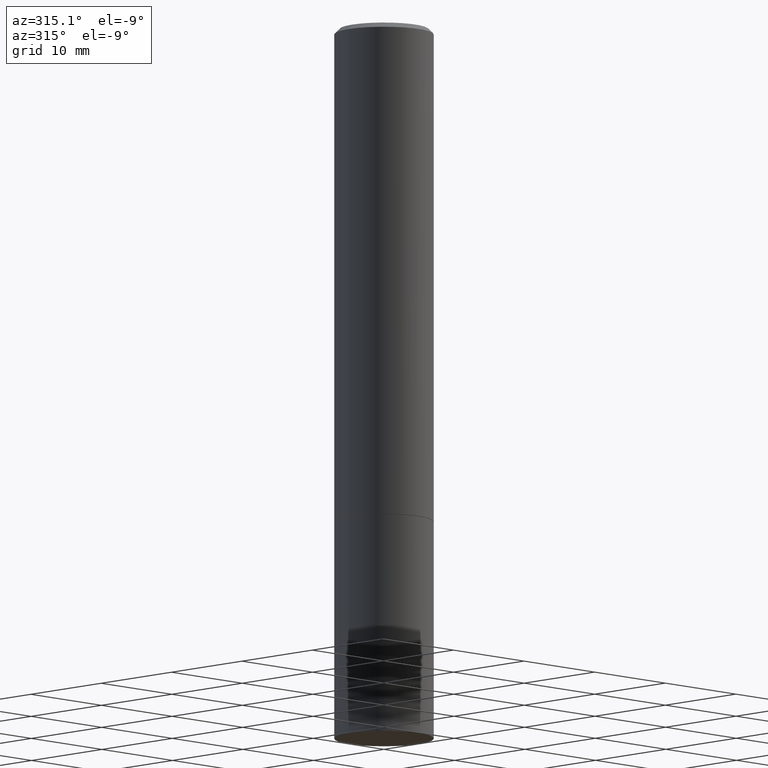
[diagram: clean part render]
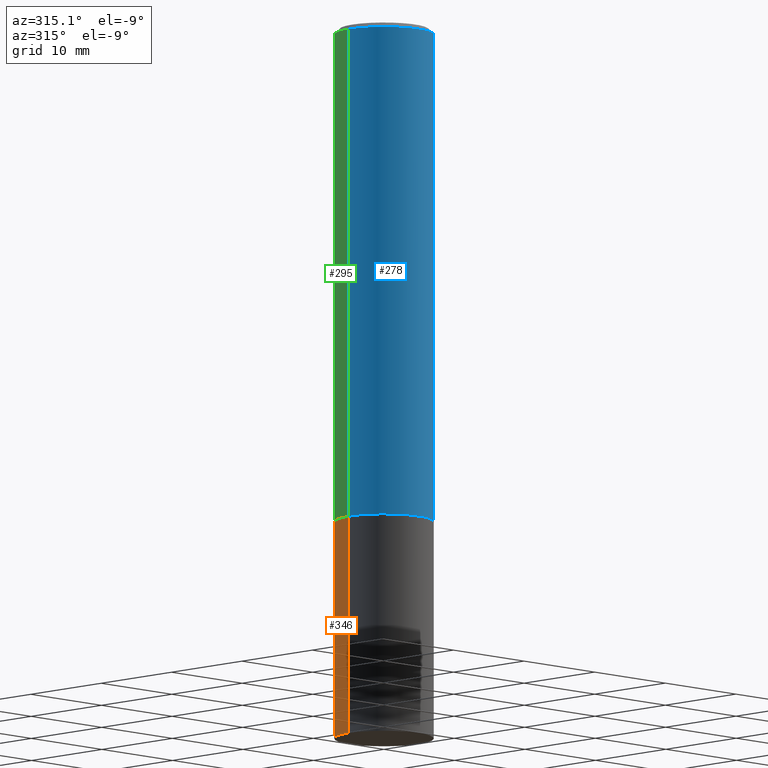
[diagram: same view with three faces highlighted in distinct colors, each labeled with its STEP entity id]
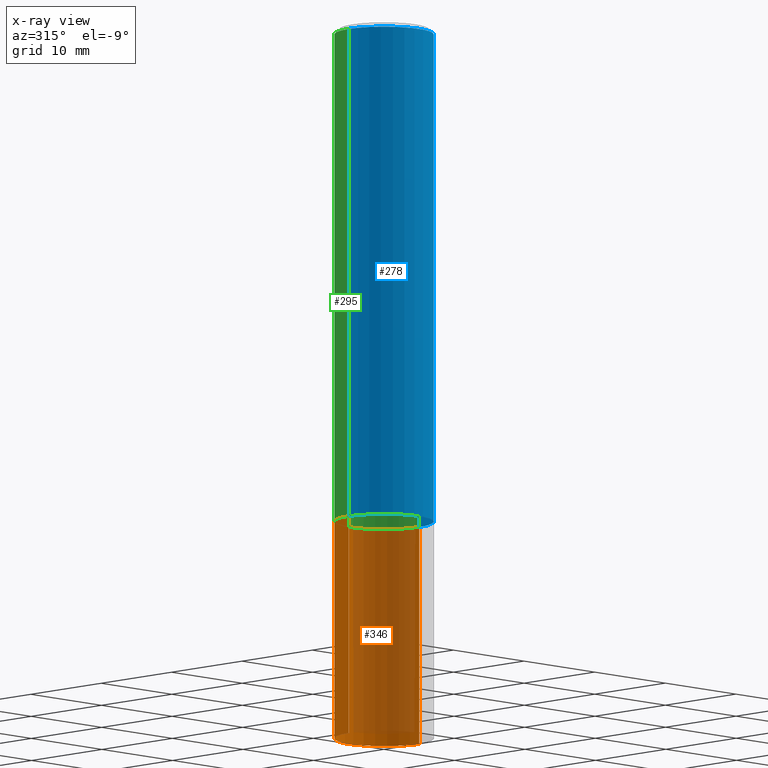
[diagram: x-ray of the same camera — body ghosted, the three highlighted faces saturated]
A machine part, auxiliary view with three faces highlighted in distinct colors.
The next image is the same camera in x-ray (body ghosted, the three faces saturated) — at least one of them is partly hidden behind the body in this view.
Their STEP definitions:

[orange] entity #346 — the highlighted cylindrical surface (partial cylindrical patch) has radius 5 mm, axis along (-0, 0, 1).
#3 = EDGE_CURVE ( 'NONE', #230, #363, #111, .T. ) ;
#4 = AXIS2_PLACEMENT_3D ( 'NONE', #157, #158, #110 ) ;
#5 = AXIS2_PLACEMENT_3D ( 'NONE', #234, #347, #202 ) ;
#31 = CIRCLE ( 'NONE', #72, 0.1968500000000000250 ) ;
#41 = CARTESIAN_POINT ( 'NONE',  ( -0.1968500000000000250, 1.398703375343757393E-15, -9.682923725166783677E-30 ) ) ;
#69 = CARTESIAN_POINT ( 'NONE',  ( -0.1968500000000000250, -6.986263633954999297E-15, -2.834600000000000009 ) ) ;
#72 = AXIS2_PLACEMENT_3D ( 'NONE', #345, #175, #123 ) ;
#78 = CYLINDRICAL_SURFACE ( 'NONE', #4, 0.1968500000000000250 ) ;
#110 = DIRECTION ( 'NONE',  ( 1.000000000000000000, -6.982962677686265922E-15, 4.876176775795935793E-29 ) ) ;
#111 = LINE ( 'NONE', #219, #249 ) ;
#123 = DIRECTION ( 'NONE',  ( 1.000000000000000000, -6.982962677686267499E-15, 0.000000000000000000 ) ) ;
#138 = ORIENTED_EDGE ( 'NONE', *, *, #215, .F. ) ;
#155 = DIRECTION ( 'NONE',  ( -2.445468806185136877E-29, 3.491481338843145188E-15, 1.000000000000000000 ) ) ;
#157 = CARTESIAN_POINT ( 'NONE',  ( 0.000000000000000000, 0.000000000000000000, 0.000000000000000000 ) ) ;
#158 = DIRECTION ( 'NONE',  ( -2.445468806185136597E-29, 3.491481338843145583E-15, 1.000000000000000000 ) ) ;
#165 = VERTEX_POINT ( 'NONE', #69 ) ;
#175 = DIRECTION ( 'NONE',  ( -2.445468806185136597E-29, 3.491481338843145583E-15, 1.000000000000000000 ) ) ;
#183 = CARTESIAN_POINT ( 'NONE',  ( 0.1968500000000000250, -8.247577218615273316E-15, -1.968500000000000139 ) ) ;
#186 = EDGE_CURVE ( 'NONE', #230, #165, #31, .T. ) ;
#202 = DIRECTION ( 'NONE',  ( 1.000000000000000000, -6.982962677686267499E-15, 0.000000000000000000 ) ) ;
#203 = ORIENTED_EDGE ( 'NONE', *, *, #317, .T. ) ;
#215 = EDGE_CURVE ( 'NONE', #363, #342, #362, .T. ) ;
#216 = CARTESIAN_POINT ( 'NONE',  ( 0.1968500000000000250, -1.127154920618732249E-14, -2.834600000000000009 ) ) ;
#219 = CARTESIAN_POINT ( 'NONE',  ( 0.1968500000000000250, -1.374596203102541608E-15, 9.598753983154300858E-30 ) ) ;
#230 = VERTEX_POINT ( 'NONE', #216 ) ;
#234 = CARTESIAN_POINT ( 'NONE',  ( 4.813905344975441835E-29, -6.872981015512731707E-15, -1.968500000000000139 ) ) ;
#246 = FACE_OUTER_BOUND ( 'NONE', #263, .T. ) ;
#249 = VECTOR ( 'NONE', #155, 39.37007874015748143 ) ;
#263 = EDGE_LOOP ( 'NONE', ( #315, #203, #138, #360 ) ) ;
#271 = VECTOR ( 'NONE', #313, 39.37007874015748143 ) ;
#276 = CARTESIAN_POINT ( 'NONE',  ( -0.1968500000000000250, -6.986263633954999297E-15, -1.968500000000000139 ) ) ;
#313 = DIRECTION ( 'NONE',  ( -2.445468806185136877E-29, 3.491481338843145188E-15, 1.000000000000000000 ) ) ;
#315 = ORIENTED_EDGE ( 'NONE', *, *, #186, .T. ) ;
#317 = EDGE_CURVE ( 'NONE', #165, #342, #353, .T. ) ;
#342 = VERTEX_POINT ( 'NONE', #276 ) ;
#345 = CARTESIAN_POINT ( 'NONE',  ( 6.931925878012387517E-29, -9.896953003084780885E-15, -2.834600000000000009 ) ) ;
#346 = ADVANCED_FACE ( 'NONE', ( #246 ), #78, .T. ) ;
#347 = DIRECTION ( 'NONE',  ( -2.445468806185136597E-29, 3.491481338843145583E-15, 1.000000000000000000 ) ) ;
#353 = LINE ( 'NONE', #41, #271 ) ;
#360 = ORIENTED_EDGE ( 'NONE', *, *, #3, .F. ) ;
#362 = CIRCLE ( 'NONE', #5, 0.1968500000000000250 ) ;
#363 = VERTEX_POINT ( 'NONE', #183 ) ;

[blue] entity #278 — the highlighted cylindrical surface (partial cylindrical patch) has radius 5 mm, axis along (-0, 0, 1).
#37 = CARTESIAN_POINT ( 'NONE',  ( 4.890937612370283668E-31, -6.982962677686305168E-17, -0.02000000000000004205 ) ) ;
#45 = VECTOR ( 'NONE', #73, 39.37007874015748143 ) ;
#55 = CIRCLE ( 'NONE', #106, 0.1968500000000000250 ) ;
#73 = DIRECTION ( 'NONE',  ( -2.445468806185136877E-29, 3.491481338843145188E-15, 1.000000000000000000 ) ) ;
#75 = CARTESIAN_POINT ( 'NONE',  ( 0.1968499999999997752, -1.420318657638187544E-15, -0.02000000000000004205 ) ) ;
#86 = VECTOR ( 'NONE', #187, 39.37007874015748143 ) ;
#93 = ORIENTED_EDGE ( 'NONE', *, *, #97, .T. ) ;
#97 = EDGE_CURVE ( 'NONE', #207, #364, #129, .T. ) ;
#106 = AXIS2_PLACEMENT_3D ( 'NONE', #302, #277, #241 ) ;
#120 = CARTESIAN_POINT ( 'NONE',  ( 0.1968500000000000250, -8.244085737276430308E-15, -1.967500000000000027 ) ) ;
#127 = FACE_OUTER_BOUND ( 'NONE', #201, .T. ) ;
#129 = LINE ( 'NONE', #250, #86 ) ;
#131 = CARTESIAN_POINT ( 'NONE',  ( -0.1968499999999997752, 1.304766576325676930E-15, -0.02000000000000004205 ) ) ;
#152 = LINE ( 'NONE', #308, #45 ) ;
#154 = DIRECTION ( 'NONE',  ( -2.445468806185136597E-29, 3.491481338843145583E-15, 1.000000000000000000 ) ) ;
#178 = DIRECTION ( 'NONE',  ( -2.445468806185136597E-29, 3.491481338843145583E-15, 1.000000000000000000 ) ) ;
#180 = DIRECTION ( 'NONE',  ( 1.000000000000000000, -6.982962677686266711E-15, 4.876176775795935793E-29 ) ) ;
#187 = DIRECTION ( 'NONE',  ( -2.445468806185136877E-29, 3.491481338843145188E-15, 1.000000000000000000 ) ) ;
#201 = EDGE_LOOP ( 'NONE', ( #225, #354, #93, #293 ) ) ;
#207 = VERTEX_POINT ( 'NONE', #120 ) ;
#208 = CYLINDRICAL_SURFACE ( 'NONE', #334, 0.1968499999999999139 ) ;
#210 = CIRCLE ( 'NONE', #272, 0.1968499999999997752 ) ;
#223 = VERTEX_POINT ( 'NONE', #131 ) ;
#225 = ORIENTED_EDGE ( 'NONE', *, *, #235, .F. ) ;
#235 = EDGE_CURVE ( 'NONE', #324, #223, #152, .T. ) ;
#240 = CARTESIAN_POINT ( 'NONE',  ( -0.1968500000000000250, -2.070956205131617817E-15, -1.967500000000000027 ) ) ;
#241 = DIRECTION ( 'NONE',  ( 1.000000000000000000, -6.982962677686267499E-15, 0.000000000000000000 ) ) ;
#250 = CARTESIAN_POINT ( 'NONE',  ( 0.1968499999999999139, -1.374596203102541017E-15, 9.598753983154295253E-30 ) ) ;
#272 = AXIS2_PLACEMENT_3D ( 'NONE', #37, #154, #333 ) ;
#273 = CARTESIAN_POINT ( 'NONE',  ( 0.000000000000000000, 0.000000000000000000, 0.000000000000000000 ) ) ;
#277 = DIRECTION ( 'NONE',  ( -2.445468806185136597E-29, 3.491481338843145583E-15, 1.000000000000000000 ) ) ;
#278 = ADVANCED_FACE ( 'NONE', ( #127 ), #208, .T. ) ;
#290 = EDGE_CURVE ( 'NONE', #324, #207, #55, .T. ) ;
#293 = ORIENTED_EDGE ( 'NONE', *, *, #340, .F. ) ;
#302 = CARTESIAN_POINT ( 'NONE',  ( 4.811459876169256232E-29, -6.869489534173888700E-15, -1.967500000000000027 ) ) ;
#308 = CARTESIAN_POINT ( 'NONE',  ( -0.1968499999999999139, 1.398703375343756604E-15, -9.682923725166778072E-30 ) ) ;
#324 = VERTEX_POINT ( 'NONE', #240 ) ;
#333 = DIRECTION ( 'NONE',  ( 1.000000000000000000, -6.982962677686266711E-15, 0.000000000000000000 ) ) ;
#334 = AXIS2_PLACEMENT_3D ( 'NONE', #273, #178, #180 ) ;
#340 = EDGE_CURVE ( 'NONE', #223, #364, #210, .T. ) ;
#354 = ORIENTED_EDGE ( 'NONE', *, *, #290, .T. ) ;
#364 = VERTEX_POINT ( 'NONE', #75 ) ;

[green] entity #295 — the highlighted cylindrical surface (partial cylindrical patch) has radius 5 mm, axis along (-0, 0, 1).
#6 = DIRECTION ( 'NONE',  ( 1.000000000000000000, -6.982962677686266711E-15, 0.000000000000000000 ) ) ;
#19 = EDGE_LOOP ( 'NONE', ( #67, #344, #115, #213 ) ) ;
#45 = VECTOR ( 'NONE', #73, 39.37007874015748143 ) ;
#67 = ORIENTED_EDGE ( 'NONE', *, *, #275, .T. ) ;
#73 = DIRECTION ( 'NONE',  ( -2.445468806185136877E-29, 3.491481338843145188E-15, 1.000000000000000000 ) ) ;
#75 = CARTESIAN_POINT ( 'NONE',  ( 0.1968499999999997752, -1.420318657638187544E-15, -0.02000000000000004205 ) ) ;
#80 = CARTESIAN_POINT ( 'NONE',  ( 4.890937612370283668E-31, -6.982962677686305168E-17, -0.02000000000000004205 ) ) ;
#86 = VECTOR ( 'NONE', #187, 39.37007874015748143 ) ;
#97 = EDGE_CURVE ( 'NONE', #207, #364, #129, .T. ) ;
#115 = ORIENTED_EDGE ( 'NONE', *, *, #267, .F. ) ;
#120 = CARTESIAN_POINT ( 'NONE',  ( 0.1968500000000000250, -8.244085737276430308E-15, -1.967500000000000027 ) ) ;
#124 = AXIS2_PLACEMENT_3D ( 'NONE', #185, #209, #327 ) ;
#129 = LINE ( 'NONE', #250, #86 ) ;
#131 = CARTESIAN_POINT ( 'NONE',  ( -0.1968499999999997752, 1.304766576325676930E-15, -0.02000000000000004205 ) ) ;
#152 = LINE ( 'NONE', #308, #45 ) ;
#160 = FACE_OUTER_BOUND ( 'NONE', #19, .T. ) ;
#171 = AXIS2_PLACEMENT_3D ( 'NONE', #80, #214, #6 ) ;
#185 = CARTESIAN_POINT ( 'NONE',  ( 4.811459876169256232E-29, -6.869489534173888700E-15, -1.967500000000000027 ) ) ;
#187 = DIRECTION ( 'NONE',  ( -2.445468806185136877E-29, 3.491481338843145188E-15, 1.000000000000000000 ) ) ;
#207 = VERTEX_POINT ( 'NONE', #120 ) ;
#209 = DIRECTION ( 'NONE',  ( -2.445468806185136597E-29, 3.491481338843145583E-15, 1.000000000000000000 ) ) ;
#213 = ORIENTED_EDGE ( 'NONE', *, *, #97, .F. ) ;
#214 = DIRECTION ( 'NONE',  ( -2.445468806185136597E-29, 3.491481338843145583E-15, 1.000000000000000000 ) ) ;
#223 = VERTEX_POINT ( 'NONE', #131 ) ;
#235 = EDGE_CURVE ( 'NONE', #324, #223, #152, .T. ) ;
#240 = CARTESIAN_POINT ( 'NONE',  ( -0.1968500000000000250, -2.070956205131617817E-15, -1.967500000000000027 ) ) ;
#244 = CYLINDRICAL_SURFACE ( 'NONE', #319, 0.1968499999999999139 ) ;
#245 = CARTESIAN_POINT ( 'NONE',  ( 0.000000000000000000, 0.000000000000000000, 0.000000000000000000 ) ) ;
#250 = CARTESIAN_POINT ( 'NONE',  ( 0.1968499999999999139, -1.374596203102541017E-15, 9.598753983154295253E-30 ) ) ;
#267 = EDGE_CURVE ( 'NONE', #364, #223, #291, .T. ) ;
#275 = EDGE_CURVE ( 'NONE', #207, #324, #283, .T. ) ;
#283 = CIRCLE ( 'NONE', #124, 0.1968500000000000250 ) ;
#291 = CIRCLE ( 'NONE', #171, 0.1968499999999997752 ) ;
#295 = ADVANCED_FACE ( 'NONE', ( #160 ), #244, .T. ) ;
#306 = DIRECTION ( 'NONE',  ( 1.000000000000000000, -6.982962677686266711E-15, 4.876176775795935793E-29 ) ) ;
#308 = CARTESIAN_POINT ( 'NONE',  ( -0.1968499999999999139, 1.398703375343756604E-15, -9.682923725166778072E-30 ) ) ;
#319 = AXIS2_PLACEMENT_3D ( 'NONE', #245, #351, #306 ) ;
#324 = VERTEX_POINT ( 'NONE', #240 ) ;
#327 = DIRECTION ( 'NONE',  ( 1.000000000000000000, -6.982962677686267499E-15, 0.000000000000000000 ) ) ;
#344 = ORIENTED_EDGE ( 'NONE', *, *, #235, .T. ) ;
#351 = DIRECTION ( 'NONE',  ( -2.445468806185136597E-29, 3.491481338843145583E-15, 1.000000000000000000 ) ) ;
#364 = VERTEX_POINT ( 'NONE', #75 ) ;